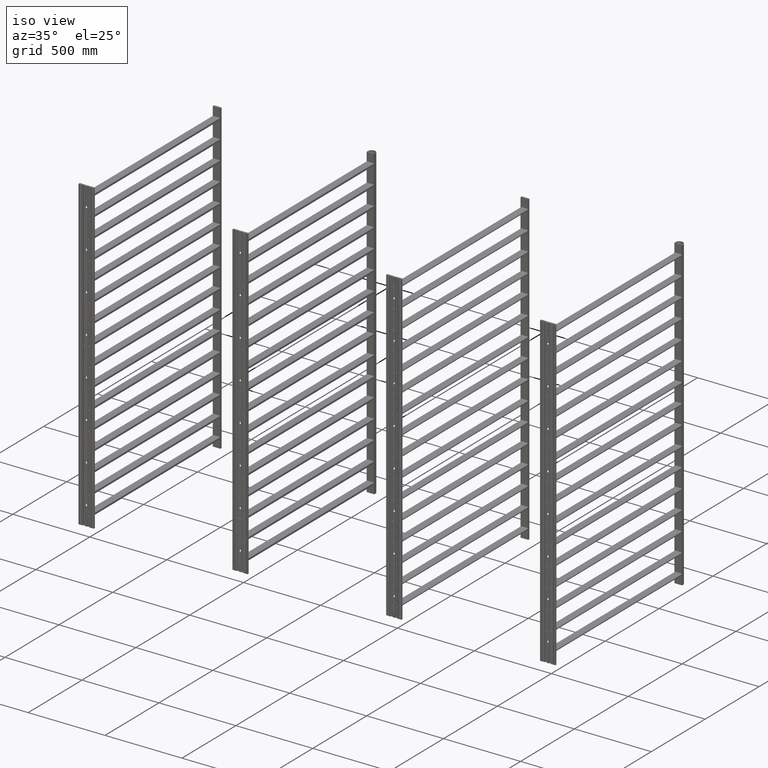
[diagram: clean part render]
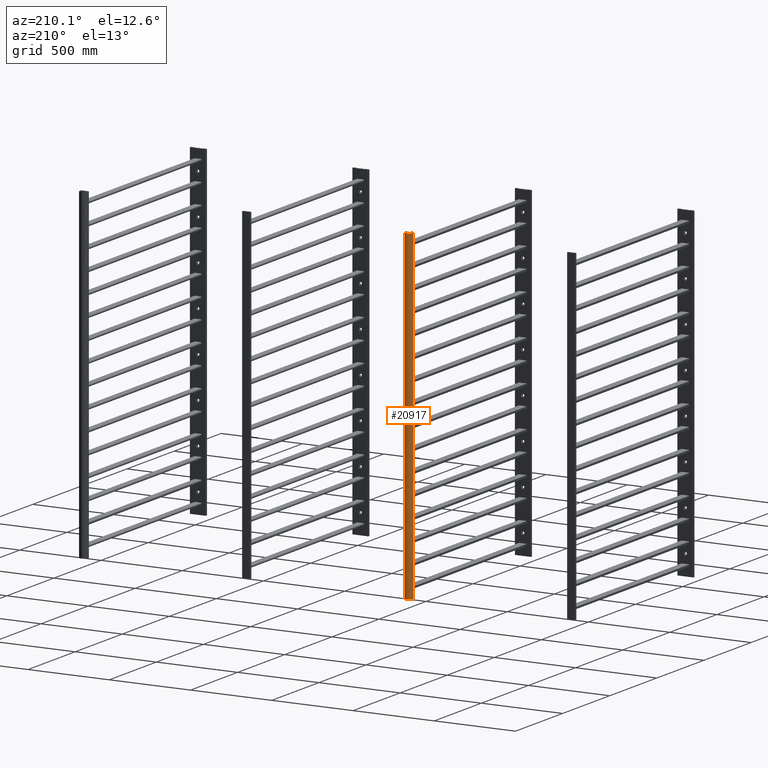
[diagram: tour spotlight — one face highlighted and labeled with its STEP entity id]
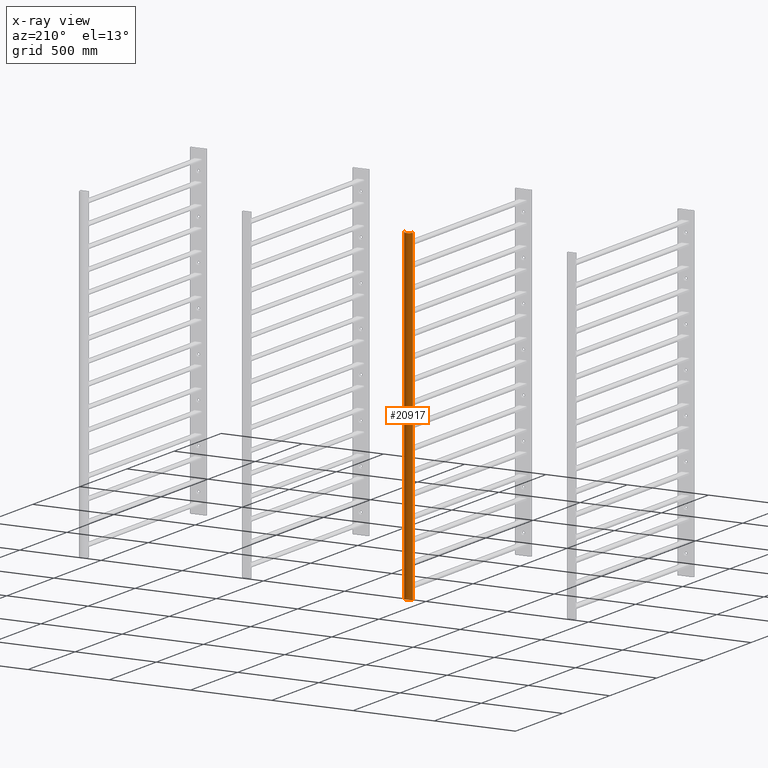
[diagram: x-ray of the same camera — body ghosted, this tour face saturated]
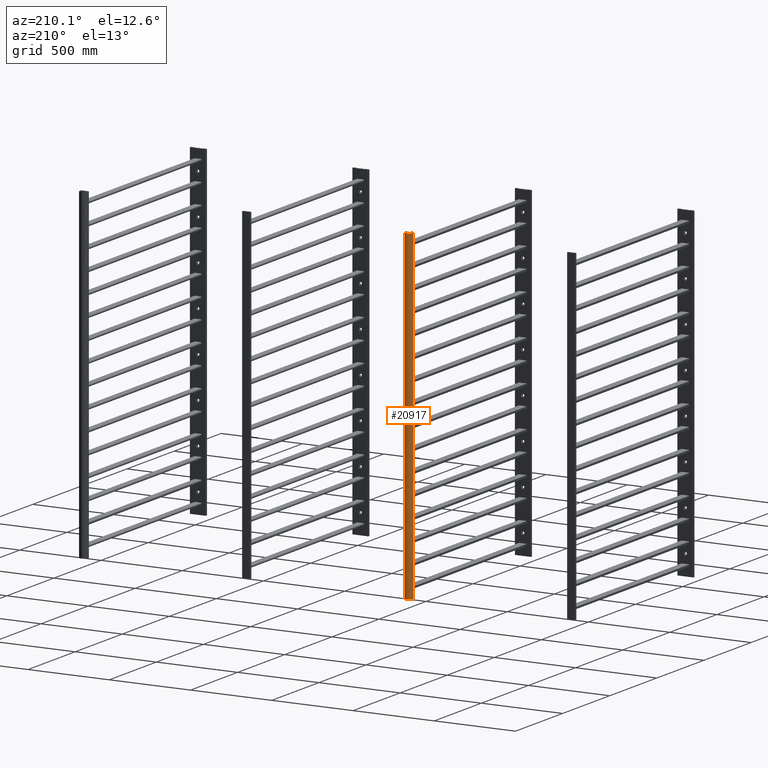
[diagram: tour spotlight — one face highlighted and labeled with its STEP entity id]
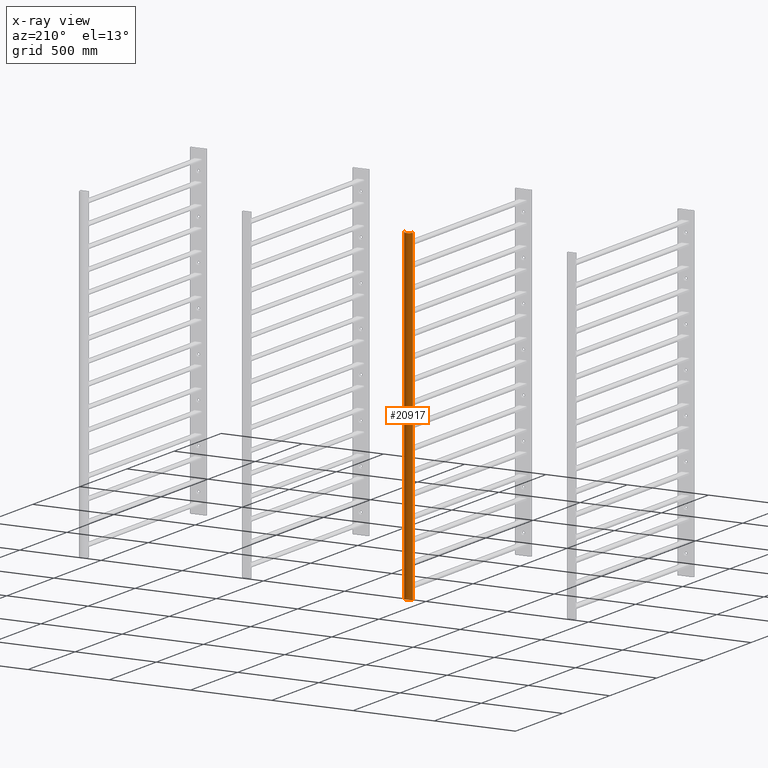
[diagram: x-ray of the same camera — body ghosted, this tour face saturated]
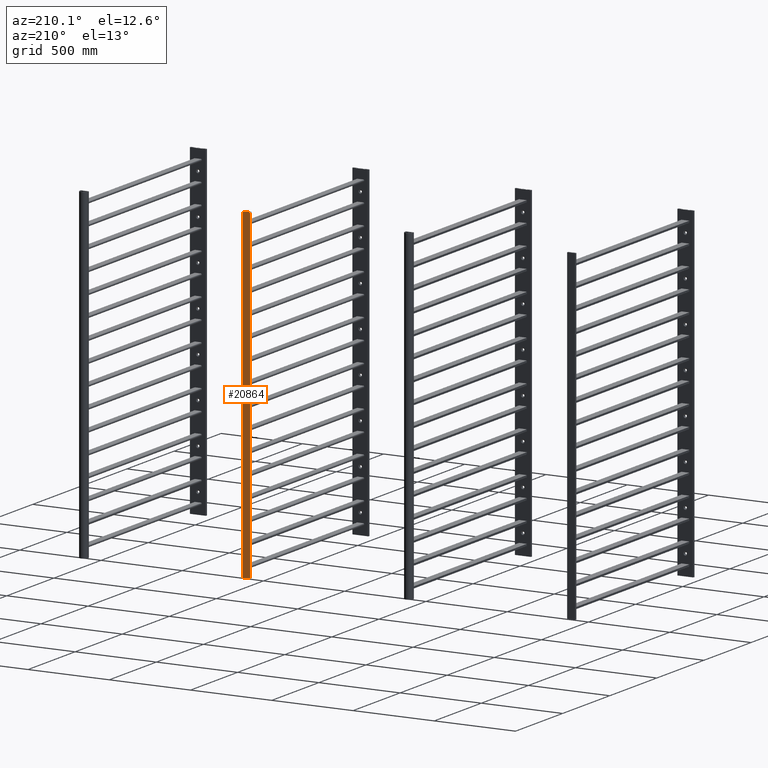
[diagram: tour spotlight — one face highlighted and labeled with its STEP entity id]
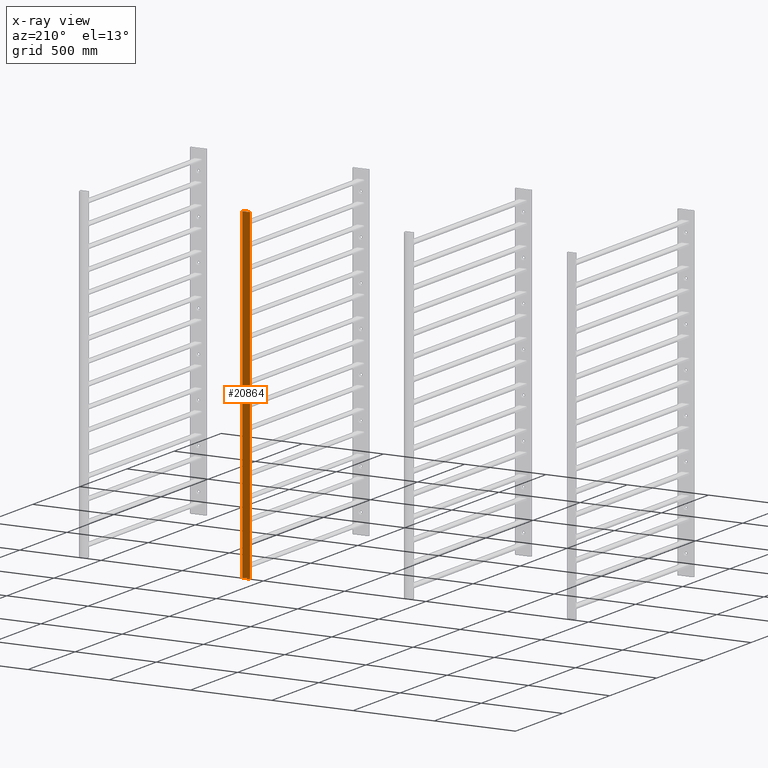
[diagram: x-ray of the same camera — body ghosted, this tour face saturated]
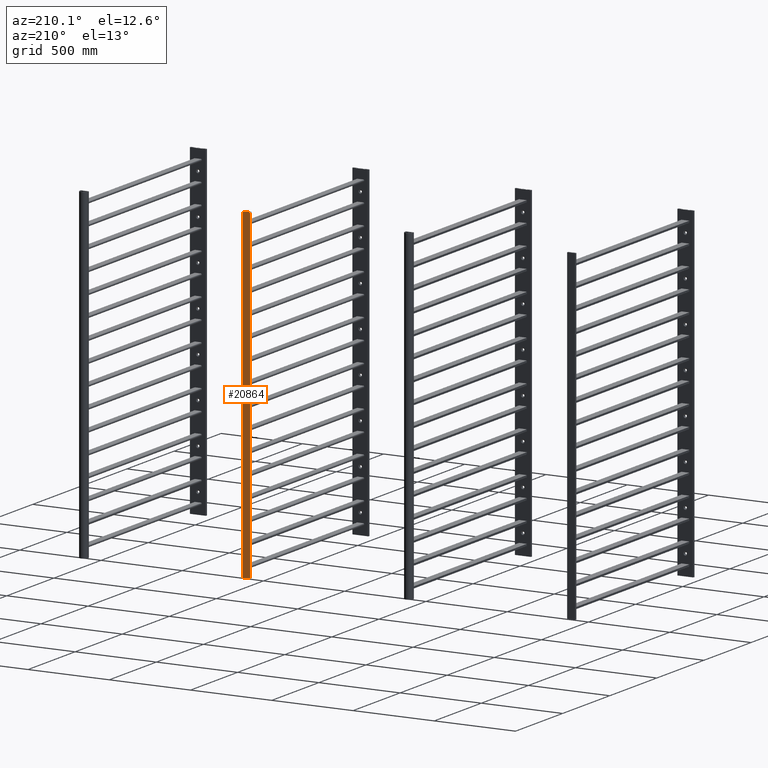
[diagram: tour spotlight — one face highlighted and labeled with its STEP entity id]
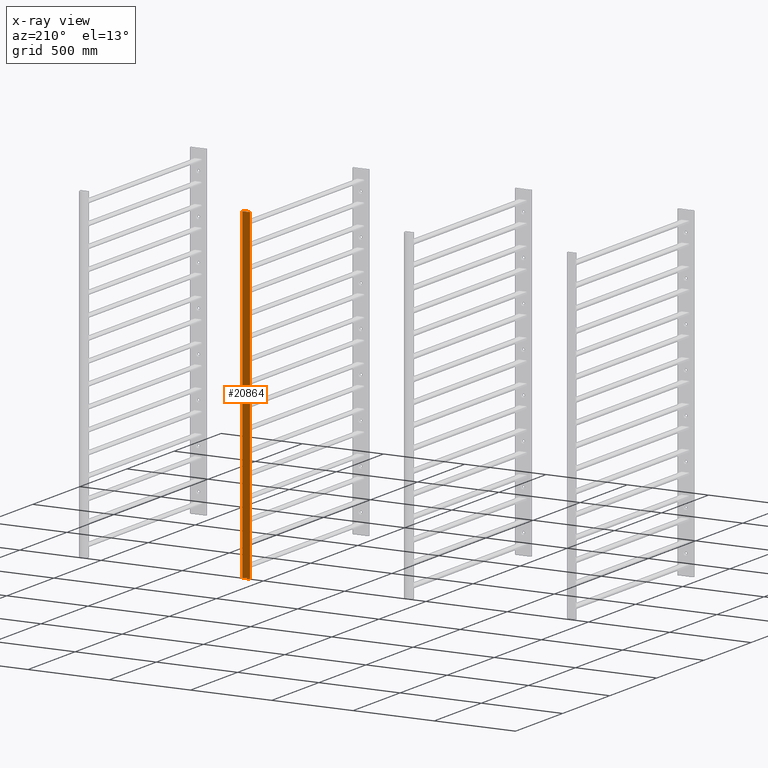
[diagram: x-ray of the same camera — body ghosted, this tour face saturated]
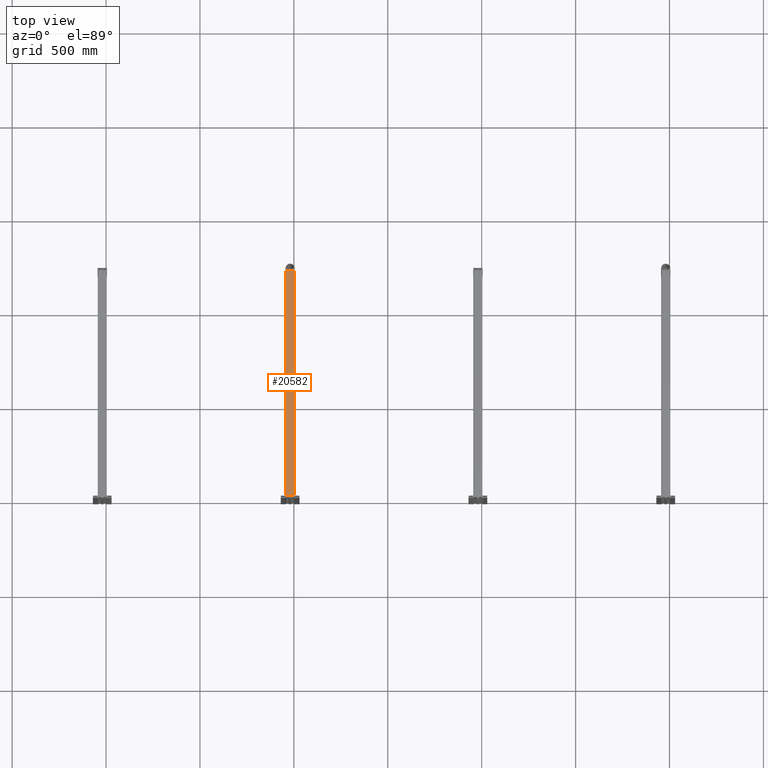
[diagram: tour spotlight — one face highlighted and labeled with its STEP entity id]
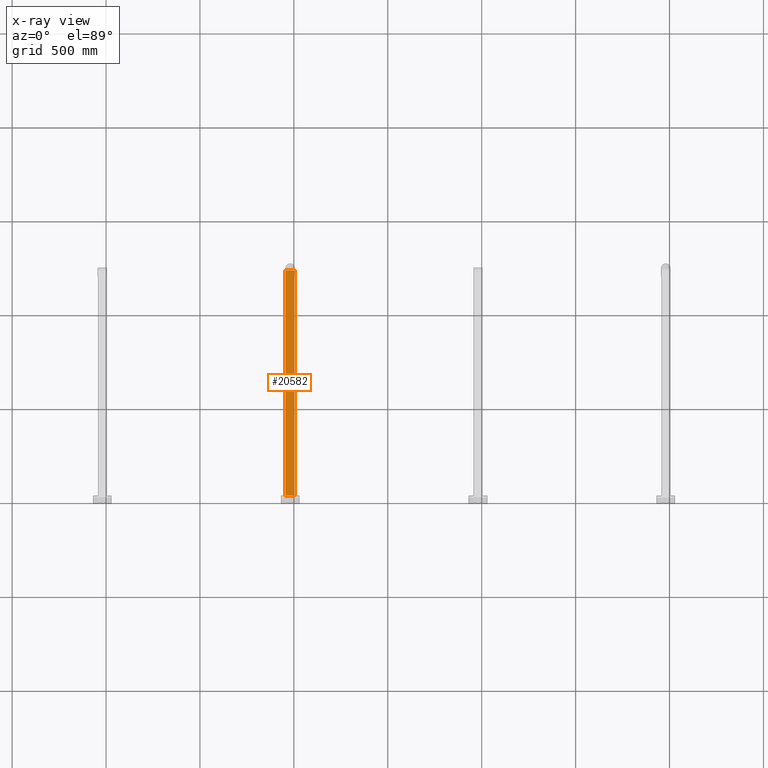
[diagram: x-ray of the same camera — body ghosted, this tour face saturated]
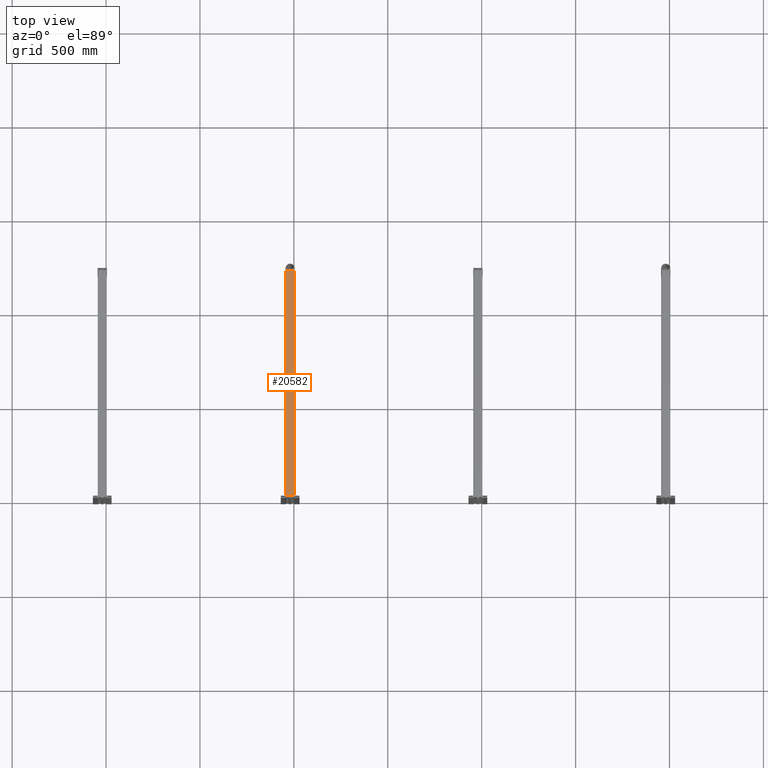
[diagram: tour spotlight — one face highlighted and labeled with its STEP entity id]
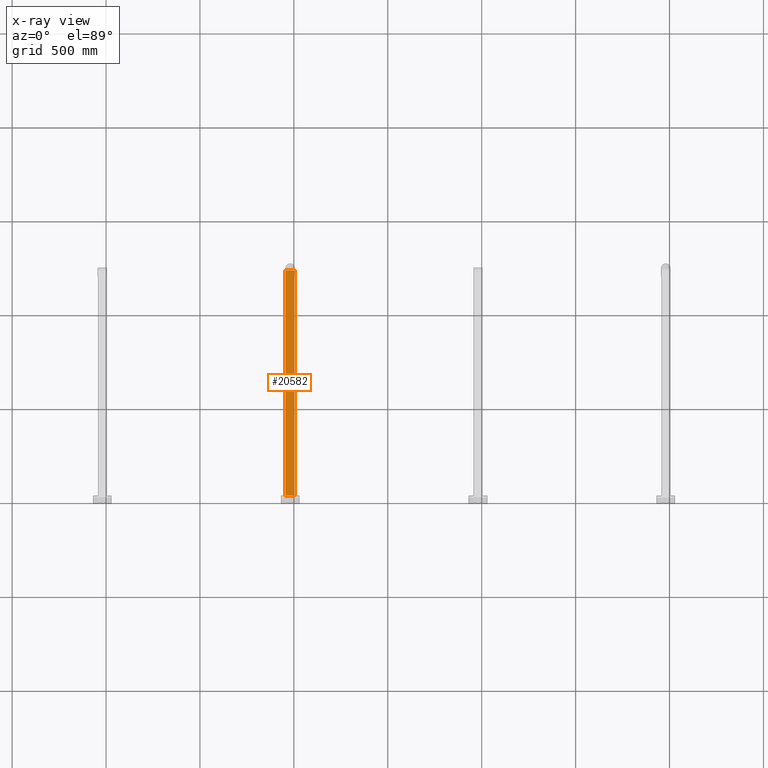
[diagram: x-ray of the same camera — body ghosted, this tour face saturated]
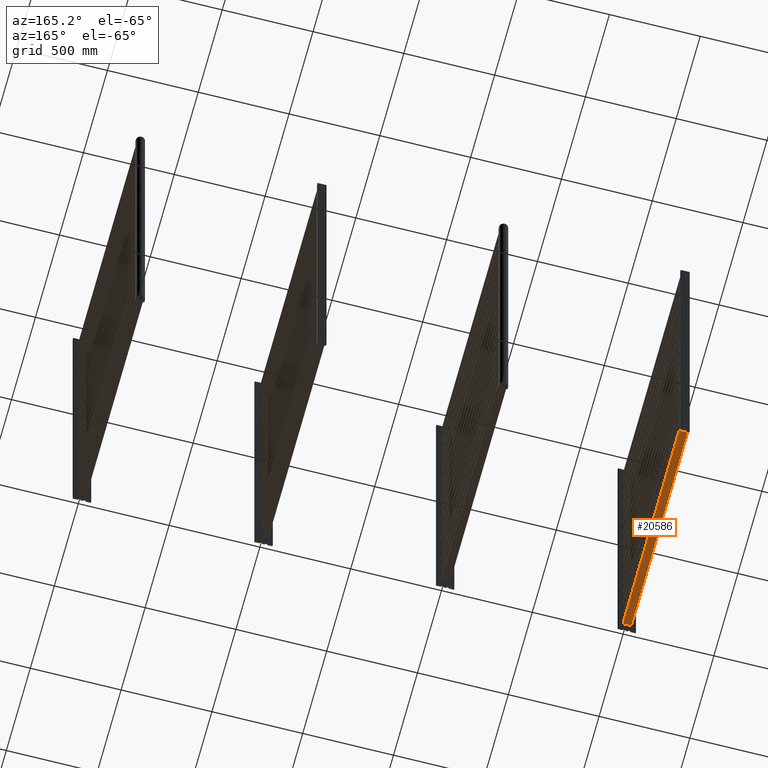
[diagram: tour spotlight — one face highlighted and labeled with its STEP entity id]
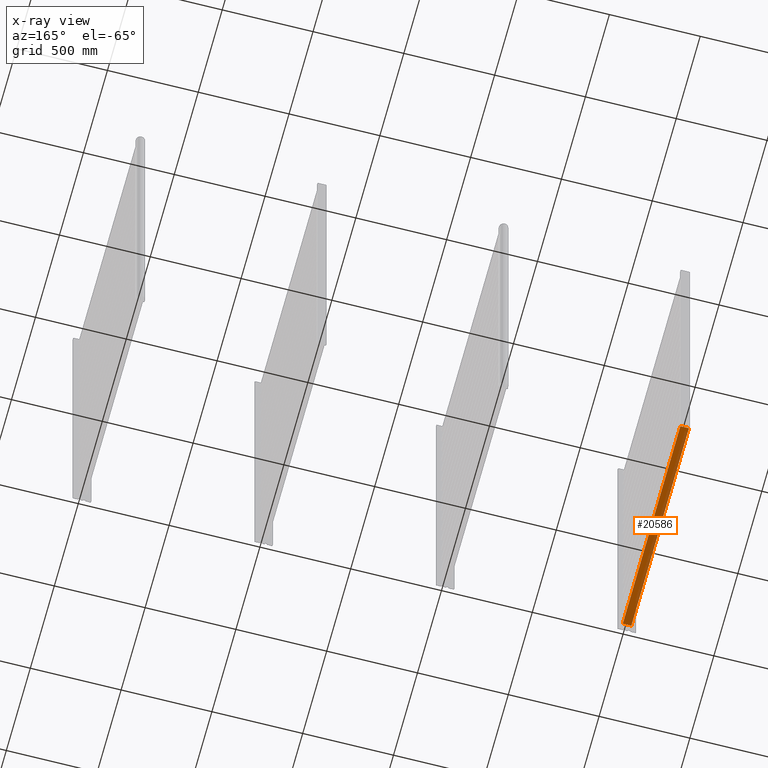
[diagram: x-ray of the same camera — body ghosted, this tour face saturated]
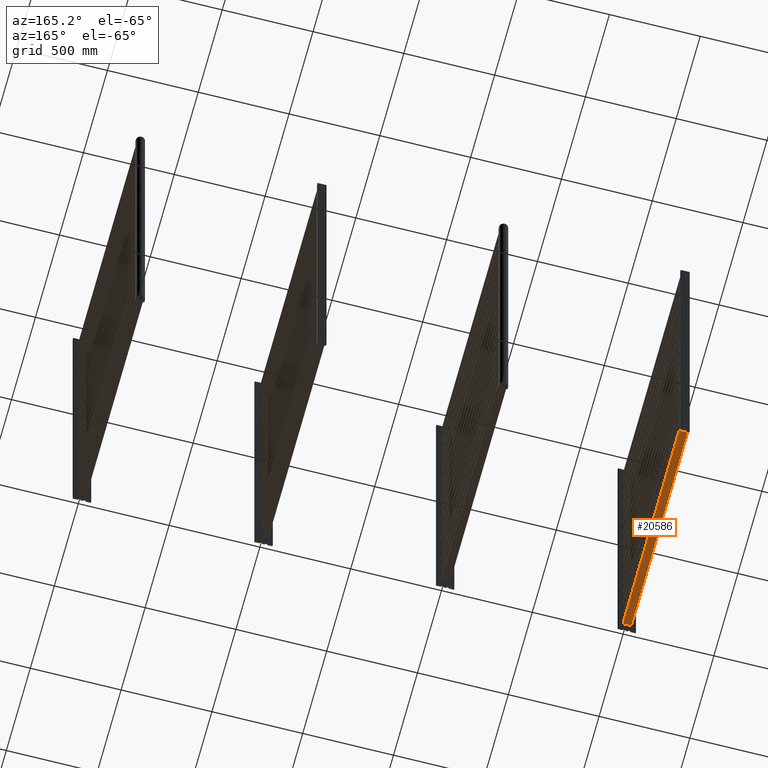
[diagram: tour spotlight — one face highlighted and labeled with its STEP entity id]
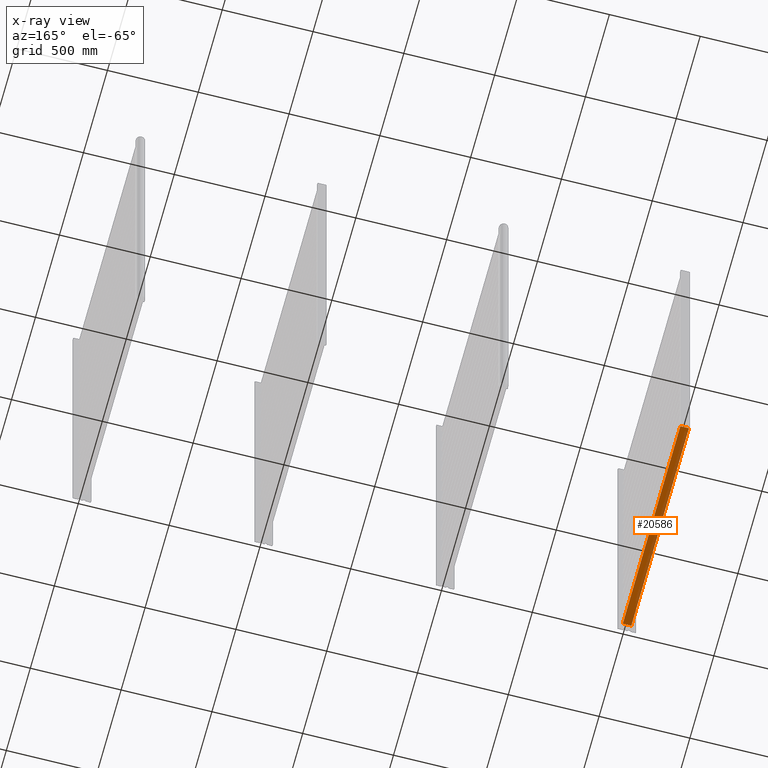
[diagram: x-ray of the same camera — body ghosted, this tour face saturated]
A machine part: a face-by-face anatomy tour. The part has 7388 B-rep faces; the first image is the clean iso view, then the 8 largest visible faces are spotlighted one at a time (largest first), each with its STEP entity span.

Face 1 — auxiliary view, entity #20917. An x-ray twin of the same camera follows (body ghosted, this face saturated) — the face is partly hidden behind the body. In plain terms, the highlighted cylindrical surface (edge-blend (fillet) strip) has radius 25 mm, axis along (0, 0, 1).
Definition (entity closure, byte-faithful):
#2055=CYLINDRICAL_SURFACE('',#23430,24.9999999999978);
#3050=FACE_OUTER_BOUND('',#4151,.T.);
#4151=EDGE_LOOP('',(#19611,#19612,#19613,#19614));
#5676=LINE('',#38797,#7215);
#5677=LINE('',#38803,#7216);
#7215=VECTOR('',#29783,10.);
#7216=VECTOR('',#29790,10.);
#8198=CIRCLE('',#23431,24.9999999999978);
#8199=CIRCLE('',#23432,24.9999999999978);
#10304=VERTEX_POINT('',#38793);
#10305=VERTEX_POINT('',#38795);
#10306=VERTEX_POINT('',#38799);
#10307=VERTEX_POINT('',#38801);
#13450=EDGE_CURVE('',#10304,#10305,#5676,.T.);
#13451=EDGE_CURVE('',#10306,#10304,#8198,.T.);
#13452=EDGE_CURVE('',#10307,#10305,#8199,.T.);
#13453=EDGE_CURVE('',#10306,#10307,#5677,.T.);
#19611=ORIENTED_EDGE('',*,*,#13451,.T.);
#19612=ORIENTED_EDGE('',*,*,#13450,.T.);
#19613=ORIENTED_EDGE('',*,*,#13452,.F.);
#19614=ORIENTED_EDGE('',*,*,#13453,.F.);
#20917=ADVANCED_FACE('',(#3050),#2055,.T.);
#23430=AXIS2_PLACEMENT_3D('',#38798,#29784,#29785);
#23431=AXIS2_PLACEMENT_3D('',#38800,#29786,#29787);
#23432=AXIS2_PLACEMENT_3D('',#38802,#29788,#29789);
#29783=DIRECTION('',(0.,0.,1.));
#29784=DIRECTION('center_axis',(0.,0.,1.));
#29785=DIRECTION('ref_axis',(1.,-1.06581410364017E-15,0.));
#29786=DIRECTION('center_axis',(0.,0.,1.));
#29787=DIRECTION('ref_axis',(1.,-1.06581410364017E-15,0.));
#29788=DIRECTION('center_axis',(0.,0.,1.));
#29789=DIRECTION('ref_axis',(1.,-1.06581410364017E-15,0.));
#29790=DIRECTION('',(0.,0.,1.));
#38793=CARTESIAN_POINT('',(1.55412201282525,11.2203480218468,0.));
#38795=CARTESIAN_POINT('',(1.55412201282525,11.2203480218468,2000.));
#38797=CARTESIAN_POINT('',(1.55412201282525,11.2203480218468,0.));
#38798=CARTESIAN_POINT('Origin',(26.5541220128257,11.2203480218468,0.));
#38799=CARTESIAN_POINT('',(51.5541220128252,11.2203480218468,0.));
#38800=CARTESIAN_POINT('Origin',(26.5541220128257,11.2203480218468,0.));
#38801=CARTESIAN_POINT('',(51.5541220128252,11.2203480218468,2000.));
#38802=CARTESIAN_POINT('Origin',(26.5541220128257,11.2203480218468,2000.));
#38803=CARTESIAN_POINT('',(51.5541220128252,11.2203480218468,0.));

Face 2 — auxiliary view, entity #20917. An x-ray twin of the same camera follows (body ghosted, this face saturated) — the face is partly hidden behind the body. In plain terms, the highlighted cylindrical surface (edge-blend (fillet) strip) has radius 25 mm, axis along (0, 0, 1).
Definition (entity closure, byte-faithful):
#2055=CYLINDRICAL_SURFACE('',#23430,24.9999999999978);
#3050=FACE_OUTER_BOUND('',#4151,.T.);
#4151=EDGE_LOOP('',(#19611,#19612,#19613,#19614));
#5676=LINE('',#38797,#7215);
#5677=LINE('',#38803,#7216);
#7215=VECTOR('',#29783,10.);
#7216=VECTOR('',#29790,10.);
#8198=CIRCLE('',#23431,24.9999999999978);
#8199=CIRCLE('',#23432,24.9999999999978);
#10304=VERTEX_POINT('',#38793);
#10305=VERTEX_POINT('',#38795);
#10306=VERTEX_POINT('',#38799);
#10307=VERTEX_POINT('',#38801);
#13450=EDGE_CURVE('',#10304,#10305,#5676,.T.);
#13451=EDGE_CURVE('',#10306,#10304,#8198,.T.);
#13452=EDGE_CURVE('',#10307,#10305,#8199,.T.);
#13453=EDGE_CURVE('',#10306,#10307,#5677,.T.);
#19611=ORIENTED_EDGE('',*,*,#13451,.T.);
#19612=ORIENTED_EDGE('',*,*,#13450,.T.);
#19613=ORIENTED_EDGE('',*,*,#13452,.F.);
#19614=ORIENTED_EDGE('',*,*,#13453,.F.);
#20917=ADVANCED_FACE('',(#3050),#2055,.T.);
#23430=AXIS2_PLACEMENT_3D('',#38798,#29784,#29785);
#23431=AXIS2_PLACEMENT_3D('',#38800,#29786,#29787);
#23432=AXIS2_PLACEMENT_3D('',#38802,#29788,#29789);
#29783=DIRECTION('',(0.,0.,1.));
#29784=DIRECTION('center_axis',(0.,0.,1.));
#29785=DIRECTION('ref_axis',(1.,-1.06581410364017E-15,0.));
#29786=DIRECTION('center_axis',(0.,0.,1.));
#29787=DIRECTION('ref_axis',(1.,-1.06581410364017E-15,0.));
#29788=DIRECTION('center_axis',(0.,0.,1.));
#29789=DIRECTION('ref_axis',(1.,-1.06581410364017E-15,0.));
#29790=DIRECTION('',(0.,0.,1.));
#38793=CARTESIAN_POINT('',(1.55412201282525,11.2203480218468,0.));
#38795=CARTESIAN_POINT('',(1.55412201282525,11.2203480218468,2000.));
#38797=CARTESIAN_POINT('',(1.55412201282525,11.2203480218468,0.));
#38798=CARTESIAN_POINT('Origin',(26.5541220128257,11.2203480218468,0.));
#38799=CARTESIAN_POINT('',(51.5541220128252,11.2203480218468,0.));
#38800=CARTESIAN_POINT('Origin',(26.5541220128257,11.2203480218468,0.));
#38801=CARTESIAN_POINT('',(51.5541220128252,11.2203480218468,2000.));
#38802=CARTESIAN_POINT('Origin',(26.5541220128257,11.2203480218468,2000.));
#38803=CARTESIAN_POINT('',(51.5541220128252,11.2203480218468,0.));

Face 3 — auxiliary view, entity #20864. An x-ray twin of the same camera follows (body ghosted, this face saturated) — the face is partly hidden behind the body. In plain terms, the highlighted planar face has unit normal (0, 1, 0).
Definition (entity closure, byte-faithful):
#885=PLANE('',#23296);
#2997=FACE_OUTER_BOUND('',#4098,.T.);
#4098=EDGE_LOOP('',(#19371,#19372,#19373,#19374));
#5603=LINE('',#38488,#7142);
#5604=LINE('',#38491,#7143);
#5605=LINE('',#38493,#7144);
#5606=LINE('',#38494,#7145);
#7142=VECTOR('',#29442,10.);
#7143=VECTOR('',#29445,10.);
#7144=VECTOR('',#29446,10.);
#7145=VECTOR('',#29447,10.);
#10202=VERTEX_POINT('',#38484);
#10203=VERTEX_POINT('',#38486);
#10204=VERTEX_POINT('',#38490);
#10205=VERTEX_POINT('',#38492);
#13297=EDGE_CURVE('',#10202,#10203,#5603,.T.);
#13298=EDGE_CURVE('',#10204,#10202,#5604,.T.);
#13299=EDGE_CURVE('',#10205,#10203,#5605,.T.);
#13300=EDGE_CURVE('',#10204,#10205,#5606,.T.);
#19371=ORIENTED_EDGE('',*,*,#13298,.T.);
#19372=ORIENTED_EDGE('',*,*,#13297,.T.);
#19373=ORIENTED_EDGE('',*,*,#13299,.F.);
#19374=ORIENTED_EDGE('',*,*,#13300,.F.);
#20864=ADVANCED_FACE('',(#2997),#885,.T.);
#23296=AXIS2_PLACEMENT_3D('',#38489,#29443,#29444);
#29442=DIRECTION('',(0.,0.,1.));
#29443=DIRECTION('center_axis',(0.,1.,0.));
#29444=DIRECTION('ref_axis',(-1.,0.,0.));
#29445=DIRECTION('',(-1.,0.,0.));
#29446=DIRECTION('',(-1.,0.,0.));
#29447=DIRECTION('',(0.,0.,1.));
#38484=CARTESIAN_POINT('',(1.5052765834771,12.6101106696378,0.));
#38486=CARTESIAN_POINT('',(1.5052765834771,12.6101106696378,2000.));
#38488=CARTESIAN_POINT('',(1.5052765834771,12.6101106696378,0.));
#38489=CARTESIAN_POINT('Origin',(49.5052765834771,12.6101106696378,0.));
#38490=CARTESIAN_POINT('',(49.5052765834771,12.6101106696378,0.));
#38491=CARTESIAN_POINT('',(49.5052765834771,12.6101106696378,0.));
#38492=CARTESIAN_POINT('',(49.5052765834771,12.6101106696378,2000.));
#38493=CARTESIAN_POINT('',(49.5052765834771,12.6101106696378,2000.));
#38494=CARTESIAN_POINT('',(49.5052765834771,12.6101106696378,0.));

Face 4 — auxiliary view, entity #20864. An x-ray twin of the same camera follows (body ghosted, this face saturated) — the face is partly hidden behind the body. In plain terms, the highlighted planar face has unit normal (0, 1, 0).
Definition (entity closure, byte-faithful):
#885=PLANE('',#23296);
#2997=FACE_OUTER_BOUND('',#4098,.T.);
#4098=EDGE_LOOP('',(#19371,#19372,#19373,#19374));
#5603=LINE('',#38488,#7142);
#5604=LINE('',#38491,#7143);
#5605=LINE('',#38493,#7144);
#5606=LINE('',#38494,#7145);
#7142=VECTOR('',#29442,10.);
#7143=VECTOR('',#29445,10.);
#7144=VECTOR('',#29446,10.);
#7145=VECTOR('',#29447,10.);
#10202=VERTEX_POINT('',#38484);
#10203=VERTEX_POINT('',#38486);
#10204=VERTEX_POINT('',#38490);
#10205=VERTEX_POINT('',#38492);
#13297=EDGE_CURVE('',#10202,#10203,#5603,.T.);
#13298=EDGE_CURVE('',#10204,#10202,#5604,.T.);
#13299=EDGE_CURVE('',#10205,#10203,#5605,.T.);
#13300=EDGE_CURVE('',#10204,#10205,#5606,.T.);
#19371=ORIENTED_EDGE('',*,*,#13298,.T.);
#19372=ORIENTED_EDGE('',*,*,#13297,.T.);
#19373=ORIENTED_EDGE('',*,*,#13299,.F.);
#19374=ORIENTED_EDGE('',*,*,#13300,.F.);
#20864=ADVANCED_FACE('',(#2997),#885,.T.);
#23296=AXIS2_PLACEMENT_3D('',#38489,#29443,#29444);
#29442=DIRECTION('',(0.,0.,1.));
#29443=DIRECTION('center_axis',(0.,1.,0.));
#29444=DIRECTION('ref_axis',(-1.,0.,0.));
#29445=DIRECTION('',(-1.,0.,0.));
#29446=DIRECTION('',(-1.,0.,0.));
#29447=DIRECTION('',(0.,0.,1.));
#38484=CARTESIAN_POINT('',(1.5052765834771,12.6101106696378,0.));
#38486=CARTESIAN_POINT('',(1.5052765834771,12.6101106696378,2000.));
#38488=CARTESIAN_POINT('',(1.5052765834771,12.6101106696378,0.));
#38489=CARTESIAN_POINT('Origin',(49.5052765834771,12.6101106696378,0.));
#38490=CARTESIAN_POINT('',(49.5052765834771,12.6101106696378,0.));
#38491=CARTESIAN_POINT('',(49.5052765834771,12.6101106696378,0.));
#38492=CARTESIAN_POINT('',(49.5052765834771,12.6101106696378,2000.));
#38493=CARTESIAN_POINT('',(49.5052765834771,12.6101106696378,2000.));
#38494=CARTESIAN_POINT('',(49.5052765834771,12.6101106696378,0.));

Face 5 — top view, entity #20582. An x-ray twin of the same camera follows (body ghosted, this face saturated) — the face is partly hidden behind the body. In plain terms, the highlighted planar face has unit normal (0, 0, 1).
Definition (entity closure, byte-faithful):
#735=PLANE('',#22555);
#2715=FACE_OUTER_BOUND('',#3764,.T.);
#3764=EDGE_LOOP('',(#17429,#17430,#17431,#17432));
#5135=LINE('',#36663,#6674);
#5136=LINE('',#36666,#6675);
#5137=LINE('',#36668,#6676);
#5138=LINE('',#36669,#6677);
#6674=VECTOR('',#27492,10.);
#6675=VECTOR('',#27495,10.);
#6676=VECTOR('',#27496,10.);
#6677=VECTOR('',#27497,10.);
#9586=VERTEX_POINT('',#36659);
#9587=VERTEX_POINT('',#36661);
#9588=VERTEX_POINT('',#36665);
#9589=VERTEX_POINT('',#36667);
#12373=EDGE_CURVE('',#9586,#9587,#5135,.T.);
#12374=EDGE_CURVE('',#9588,#9586,#5136,.T.);
#12375=EDGE_CURVE('',#9589,#9587,#5137,.T.);
#12376=EDGE_CURVE('',#9588,#9589,#5138,.T.);
#17429=ORIENTED_EDGE('',*,*,#12374,.T.);
#17430=ORIENTED_EDGE('',*,*,#12373,.T.);
#17431=ORIENTED_EDGE('',*,*,#12375,.F.);
#17432=ORIENTED_EDGE('',*,*,#12376,.F.);
#20582=ADVANCED_FACE('',(#2715),#735,.T.);
#22555=AXIS2_PLACEMENT_3D('',#36664,#27493,#27494);
#27492=DIRECTION('',(0.,0.,1.));
#27493=DIRECTION('center_axis',(0.,-1.,0.));
#27494=DIRECTION('ref_axis',(1.,0.,0.));
#27495=DIRECTION('',(1.,0.,0.));
#27496=DIRECTION('',(1.,0.,0.));
#27497=DIRECTION('',(0.,0.,1.));
#36659=CARTESIAN_POINT('',(48.0057648647144,0.438695414328322,0.));
#36661=CARTESIAN_POINT('',(48.0057648647144,0.438695414328323,1200.));
#36663=CARTESIAN_POINT('',(48.0057648647144,0.438695414328322,0.));
#36664=CARTESIAN_POINT('Origin',(1.00576486471437,0.438695414328322,0.));
#36665=CARTESIAN_POINT('',(1.00576486471437,0.438695414328322,0.));
#36666=CARTESIAN_POINT('',(1.00576486471437,0.438695414328322,0.));
#36667=CARTESIAN_POINT('',(1.00576486471437,0.438695414328323,1200.));
#36668=CARTESIAN_POINT('',(1.00576486471437,0.438695414328322,1200.));
#36669=CARTESIAN_POINT('',(1.00576486471437,0.438695414328322,0.));

Face 6 — top view, entity #20582. An x-ray twin of the same camera follows (body ghosted, this face saturated) — the face is partly hidden behind the body. In plain terms, the highlighted planar face has unit normal (0, 0, 1).
Definition (entity closure, byte-faithful):
#735=PLANE('',#22555);
#2715=FACE_OUTER_BOUND('',#3764,.T.);
#3764=EDGE_LOOP('',(#17429,#17430,#17431,#17432));
#5135=LINE('',#36663,#6674);
#5136=LINE('',#36666,#6675);
#5137=LINE('',#36668,#6676);
#5138=LINE('',#36669,#6677);
#6674=VECTOR('',#27492,10.);
#6675=VECTOR('',#27495,10.);
#6676=VECTOR('',#27496,10.);
#6677=VECTOR('',#27497,10.);
#9586=VERTEX_POINT('',#36659);
#9587=VERTEX_POINT('',#36661);
#9588=VERTEX_POINT('',#36665);
#9589=VERTEX_POINT('',#36667);
#12373=EDGE_CURVE('',#9586,#9587,#5135,.T.);
#12374=EDGE_CURVE('',#9588,#9586,#5136,.T.);
#12375=EDGE_CURVE('',#9589,#9587,#5137,.T.);
#12376=EDGE_CURVE('',#9588,#9589,#5138,.T.);
#17429=ORIENTED_EDGE('',*,*,#12374,.T.);
#17430=ORIENTED_EDGE('',*,*,#12373,.T.);
#17431=ORIENTED_EDGE('',*,*,#12375,.F.);
#17432=ORIENTED_EDGE('',*,*,#12376,.F.);
#20582=ADVANCED_FACE('',(#2715),#735,.T.);
#22555=AXIS2_PLACEMENT_3D('',#36664,#27493,#27494);
#27492=DIRECTION('',(0.,0.,1.));
#27493=DIRECTION('center_axis',(0.,-1.,0.));
#27494=DIRECTION('ref_axis',(1.,0.,0.));
#27495=DIRECTION('',(1.,0.,0.));
#27496=DIRECTION('',(1.,0.,0.));
#27497=DIRECTION('',(0.,0.,1.));
#36659=CARTESIAN_POINT('',(48.0057648647144,0.438695414328322,0.));
#36661=CARTESIAN_POINT('',(48.0057648647144,0.438695414328323,1200.));
#36663=CARTESIAN_POINT('',(48.0057648647144,0.438695414328322,0.));
#36664=CARTESIAN_POINT('Origin',(1.00576486471437,0.438695414328322,0.));
#36665=CARTESIAN_POINT('',(1.00576486471437,0.438695414328322,0.));
#36666=CARTESIAN_POINT('',(1.00576486471437,0.438695414328322,0.));
#36667=CARTESIAN_POINT('',(1.00576486471437,0.438695414328323,1200.));
#36668=CARTESIAN_POINT('',(1.00576486471437,0.438695414328322,1200.));
#36669=CARTESIAN_POINT('',(1.00576486471437,0.438695414328322,0.));

Face 7 — auxiliary view, entity #20586. An x-ray twin of the same camera follows (body ghosted, this face saturated) — the face is partly hidden behind the body. In plain terms, the highlighted planar face has unit normal (0, 0, -1).
Definition (entity closure, byte-faithful):
#737=PLANE('',#22563);
#2719=FACE_OUTER_BOUND('',#3768,.T.);
#3768=EDGE_LOOP('',(#17445,#17446,#17447,#17448));
#5130=LINE('',#36648,#6669);
#5143=LINE('',#36687,#6682);
#5144=LINE('',#36689,#6683);
#5145=LINE('',#36690,#6684);
#6669=VECTOR('',#27477,10.);
#6682=VECTOR('',#27516,10.);
#6683=VECTOR('',#27519,10.);
#6684=VECTOR('',#27520,10.);
#9581=VERTEX_POINT('',#36645);
#9582=VERTEX_POINT('',#36647);
#9594=VERTEX_POINT('',#36683);
#9595=VERTEX_POINT('',#36685);
#12365=EDGE_CURVE('',#9581,#9582,#5130,.T.);
#12385=EDGE_CURVE('',#9594,#9595,#5143,.T.);
#12386=EDGE_CURVE('',#9581,#9594,#5144,.T.);
#12387=EDGE_CURVE('',#9582,#9595,#5145,.T.);
#17445=ORIENTED_EDGE('',*,*,#12386,.T.);
#17446=ORIENTED_EDGE('',*,*,#12385,.T.);
#17447=ORIENTED_EDGE('',*,*,#12387,.F.);
#17448=ORIENTED_EDGE('',*,*,#12365,.F.);
#20586=ADVANCED_FACE('',(#2719),#737,.T.);
#22563=AXIS2_PLACEMENT_3D('',#36688,#27517,#27518);
#27477=DIRECTION('',(0.,0.,1.));
#27516=DIRECTION('',(0.,0.,1.));
#27517=DIRECTION('center_axis',(0.,1.,0.));
#27518=DIRECTION('ref_axis',(-1.,0.,0.));
#27519=DIRECTION('',(-1.,0.,0.));
#27520=DIRECTION('',(-1.,0.,0.));
#36645=CARTESIAN_POINT('',(48.0057648647144,12.4386954143283,0.));
#36647=CARTESIAN_POINT('',(48.0057648647144,12.4386954143283,1200.));
#36648=CARTESIAN_POINT('',(48.0057648647144,12.4386954143283,0.));
#36683=CARTESIAN_POINT('',(1.00576486471437,12.4386954143283,0.));
#36685=CARTESIAN_POINT('',(1.00576486471437,12.4386954143283,1200.));
#36687=CARTESIAN_POINT('',(1.00576486471437,12.4386954143283,0.));
#36688=CARTESIAN_POINT('Origin',(48.0057648647144,12.4386954143283,0.));
#36689=CARTESIAN_POINT('',(48.0057648647144,12.4386954143283,0.));
#36690=CARTESIAN_POINT('',(48.0057648647144,12.4386954143283,1200.));

Face 8 — auxiliary view, entity #20586. An x-ray twin of the same camera follows (body ghosted, this face saturated) — the face is partly hidden behind the body. In plain terms, the highlighted planar face has unit normal (0, 0, -1).
Definition (entity closure, byte-faithful):
#737=PLANE('',#22563);
#2719=FACE_OUTER_BOUND('',#3768,.T.);
#3768=EDGE_LOOP('',(#17445,#17446,#17447,#17448));
#5130=LINE('',#36648,#6669);
#5143=LINE('',#36687,#6682);
#5144=LINE('',#36689,#6683);
#5145=LINE('',#36690,#6684);
#6669=VECTOR('',#27477,10.);
#6682=VECTOR('',#27516,10.);
#6683=VECTOR('',#27519,10.);
#6684=VECTOR('',#27520,10.);
#9581=VERTEX_POINT('',#36645);
#9582=VERTEX_POINT('',#36647);
#9594=VERTEX_POINT('',#36683);
#9595=VERTEX_POINT('',#36685);
#12365=EDGE_CURVE('',#9581,#9582,#5130,.T.);
#12385=EDGE_CURVE('',#9594,#9595,#5143,.T.);
#12386=EDGE_CURVE('',#9581,#9594,#5144,.T.);
#12387=EDGE_CURVE('',#9582,#9595,#5145,.T.);
#17445=ORIENTED_EDGE('',*,*,#12386,.T.);
#17446=ORIENTED_EDGE('',*,*,#12385,.T.);
#17447=ORIENTED_EDGE('',*,*,#12387,.F.);
#17448=ORIENTED_EDGE('',*,*,#12365,.F.);
#20586=ADVANCED_FACE('',(#2719),#737,.T.);
#22563=AXIS2_PLACEMENT_3D('',#36688,#27517,#27518);
#27477=DIRECTION('',(0.,0.,1.));
#27516=DIRECTION('',(0.,0.,1.));
#27517=DIRECTION('center_axis',(0.,1.,0.));
#27518=DIRECTION('ref_axis',(-1.,0.,0.));
#27519=DIRECTION('',(-1.,0.,0.));
#27520=DIRECTION('',(-1.,0.,0.));
#36645=CARTESIAN_POINT('',(48.0057648647144,12.4386954143283,0.));
#36647=CARTESIAN_POINT('',(48.0057648647144,12.4386954143283,1200.));
#36648=CARTESIAN_POINT('',(48.0057648647144,12.4386954143283,0.));
#36683=CARTESIAN_POINT('',(1.00576486471437,12.4386954143283,0.));
#36685=CARTESIAN_POINT('',(1.00576486471437,12.4386954143283,1200.));
#36687=CARTESIAN_POINT('',(1.00576486471437,12.4386954143283,0.));
#36688=CARTESIAN_POINT('Origin',(48.0057648647144,12.4386954143283,0.));
#36689=CARTESIAN_POINT('',(48.0057648647144,12.4386954143283,0.));
#36690=CARTESIAN_POINT('',(48.0057648647144,12.4386954143283,1200.));